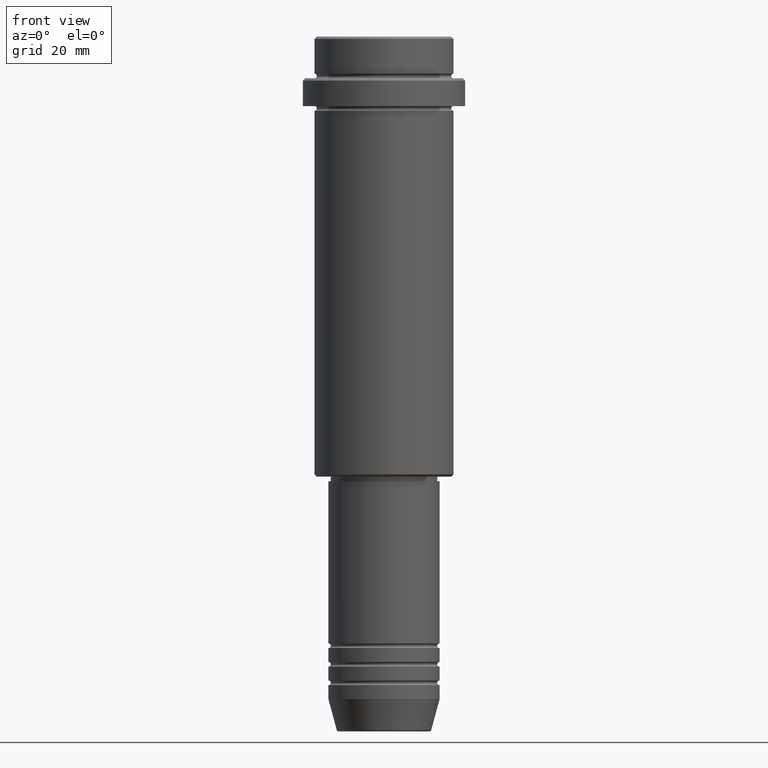
[diagram: clean part render]
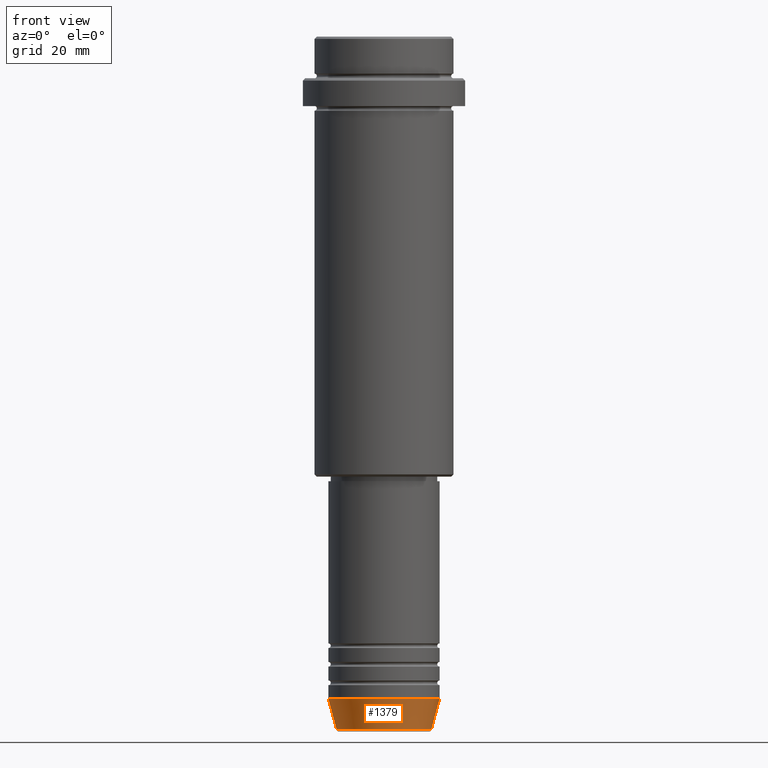
[diagram: same view with one face highlighted and labeled with its STEP entity id]
A machine part, front view. The second image highlights one B-rep face of the part: STEP entity #1379.
In plain terms, the highlighted conical surface has half-angle 15 deg.
Its self-contained STEP definition (entity closure, byte-faithful):
#83 = CARTESIAN_POINT ( 'NONE',  ( -12.00000000000000000, 1.469576158976823947E-15, -143.0000000000000000 ) ) ;
#86 = ORIENTED_EDGE ( 'NONE', *, *, #124, .F. ) ;
#113 = CARTESIAN_POINT ( 'NONE',  ( 12.00000000000000000, 0.000000000000000000, -143.0000000000000000 ) ) ;
#124 = EDGE_CURVE ( 'NONE', #262, #235, #354, .T. ) ;
#208 = DIRECTION ( 'NONE',  ( -0.000000000000000000, -0.000000000000000000, 1.000000000000000000 ) ) ;
#235 = VERTEX_POINT ( 'NONE', #113 ) ;
#256 = EDGE_CURVE ( 'NONE', #655, #974, #766, .T. ) ;
#262 = VERTEX_POINT ( 'NONE', #83 ) ;
#274 = CARTESIAN_POINT ( 'NONE',  ( -12.00000000000000000, 1.469576158976823947E-15, -143.0000000000000000 ) ) ;
#314 = DIRECTION ( 'NONE',  ( 1.000000000000000000, 0.000000000000000000, 0.000000000000000000 ) ) ;
#344 = CARTESIAN_POINT ( 'NONE',  ( 10.22365507213719127, 0.000000000000000000, -149.6294095225512422 ) ) ;
#354 = CIRCLE ( 'NONE', #809, 12.00000000000000000 ) ;
#356 = CONICAL_SURFACE ( 'NONE', #1372, 12.00000000000000000, 0.2617993877991500740 ) ;
#360 = DIRECTION ( 'NONE',  ( -0.2588190451025213501, 3.169619151431772337E-17, 0.9659258262890680902 ) ) ;
#467 = CARTESIAN_POINT ( 'NONE',  ( -10.22365507213719127, 1.360806402472382744E-15, -149.6294095225512422 ) ) ;
#514 = VECTOR ( 'NONE', #1332, 1000.000000000000000 ) ;
#570 = EDGE_LOOP ( 'NONE', ( #1323, #573, #1400, #86 ) ) ;
#573 = ORIENTED_EDGE ( 'NONE', *, *, #256, .T. ) ;
#581 = AXIS2_PLACEMENT_3D ( 'NONE', #1164, #208, #633 ) ;
#627 = FACE_OUTER_BOUND ( 'NONE', #570, .T. ) ;
#633 = DIRECTION ( 'NONE',  ( 1.000000000000000000, 0.000000000000000000, 0.000000000000000000 ) ) ;
#655 = VERTEX_POINT ( 'NONE', #467 ) ;
#671 = EDGE_CURVE ( 'NONE', #974, #235, #703, .T. ) ;
#703 = LINE ( 'NONE', #924, #514 ) ;
#706 = CARTESIAN_POINT ( 'NONE',  ( 0.000000000000000000, 0.000000000000000000, -143.0000000000000000 ) ) ;
#766 = CIRCLE ( 'NONE', #581, 10.22365507213719127 ) ;
#809 = AXIS2_PLACEMENT_3D ( 'NONE', #706, #930, #314 ) ;
#814 = LINE ( 'NONE', #274, #1192 ) ;
#857 = DIRECTION ( 'NONE',  ( 1.000000000000000000, 0.000000000000000000, 0.000000000000000000 ) ) ;
#924 = CARTESIAN_POINT ( 'NONE',  ( 12.00000000000000000, 0.000000000000000000, -143.0000000000000000 ) ) ;
#930 = DIRECTION ( 'NONE',  ( -0.000000000000000000, -0.000000000000000000, 1.000000000000000000 ) ) ;
#974 = VERTEX_POINT ( 'NONE', #344 ) ;
#1141 = EDGE_CURVE ( 'NONE', #655, #262, #814, .T. ) ;
#1164 = CARTESIAN_POINT ( 'NONE',  ( 0.000000000000000000, 0.000000000000000000, -149.6294095225512422 ) ) ;
#1180 = DIRECTION ( 'NONE',  ( -0.000000000000000000, -0.000000000000000000, 1.000000000000000000 ) ) ;
#1192 = VECTOR ( 'NONE', #360, 1000.000000000000000 ) ;
#1290 = CARTESIAN_POINT ( 'NONE',  ( 0.000000000000000000, 0.000000000000000000, -143.0000000000000000 ) ) ;
#1323 = ORIENTED_EDGE ( 'NONE', *, *, #1141, .F. ) ;
#1332 = DIRECTION ( 'NONE',  ( 0.2588190451025213501, 0.000000000000000000, 0.9659258262890680902 ) ) ;
#1372 = AXIS2_PLACEMENT_3D ( 'NONE', #1290, #1180, #857 ) ;
#1379 = ADVANCED_FACE ( 'NONE', ( #627 ), #356, .T. ) ;
#1400 = ORIENTED_EDGE ( 'NONE', *, *, #671, .T. ) ;